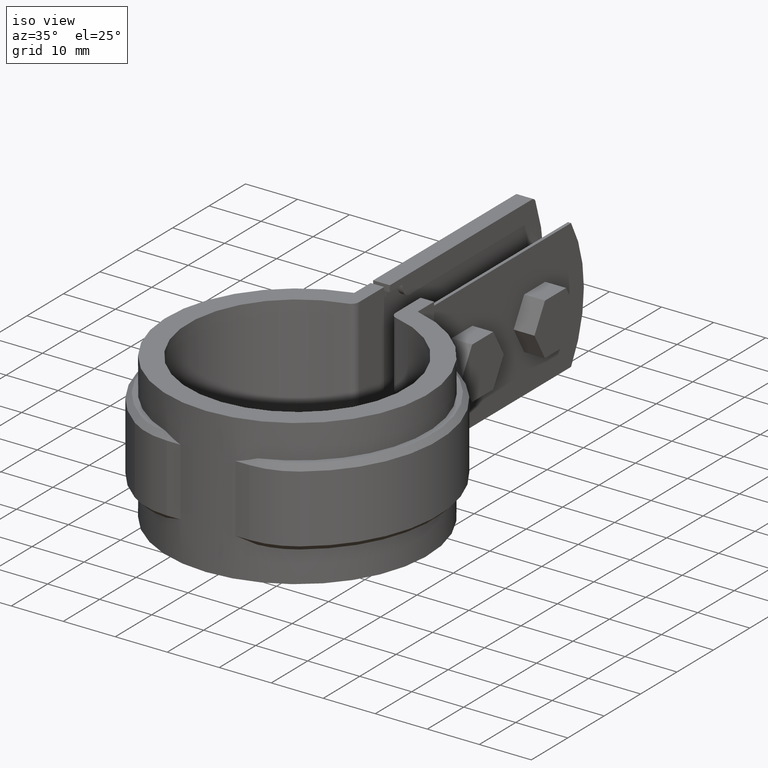
[diagram: clean part render]
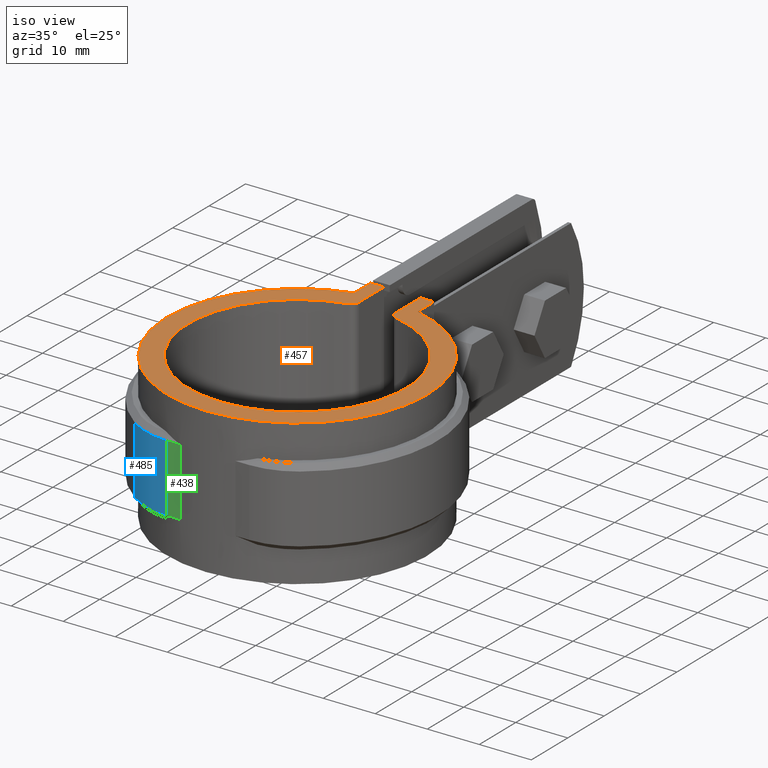
[diagram: same view with three faces highlighted in distinct colors, each labeled with its STEP entity id]
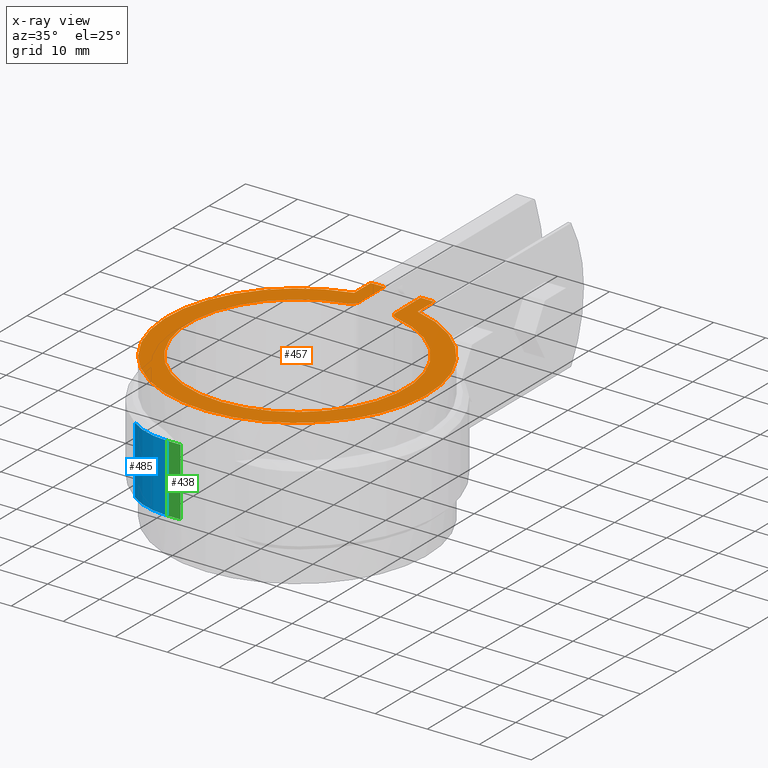
[diagram: x-ray of the same camera — body ghosted, the three highlighted faces saturated]
A machine part, iso view with three faces highlighted in distinct colors.
The next image is the same camera in x-ray (body ghosted, the three faces saturated) — at least one of them is partly hidden behind the body in this view.
Their STEP definitions:

[orange] entity #457 — the highlighted planar face has unit normal (0, 0, -1).
#457 = ADVANCED_FACE( '', ( #910 ), #911, .F. );
#910 = FACE_OUTER_BOUND( '', #2034, .T. );
#911 = PLANE( '', #2035 );
#2034 = EDGE_LOOP( '', ( #4236, #4237, #4238, #4239, #4240, #4241, #4242, #4243, #4244, #4245 ) );
#2035 = AXIS2_PLACEMENT_3D( '', #4246, #4247, #4248 );
#4236 = ORIENTED_EDGE( '', *, *, #6677, .T. );
#4237 = ORIENTED_EDGE( '', *, *, #6503, .T. );
#4238 = ORIENTED_EDGE( '', *, *, #6629, .T. );
#4239 = ORIENTED_EDGE( '', *, *, #6625, .T. );
#4240 = ORIENTED_EDGE( '', *, *, #6637, .T. );
#4241 = ORIENTED_EDGE( '', *, *, #6668, .T. );
#4242 = ORIENTED_EDGE( '', *, *, #6678, .T. );
#4243 = ORIENTED_EDGE( '', *, *, #6679, .T. );
#4244 = ORIENTED_EDGE( '', *, *, #6680, .F. );
#4245 = ORIENTED_EDGE( '', *, *, #6681, .T. );
#4246 = CARTESIAN_POINT( '', ( -6.50000000000000, 23.6220236220354, 1.50000000000000 ) );
#4247 = DIRECTION( '', ( 0.000000000000000, 0.000000000000000, -1.00000000000000 ) );
#4248 = DIRECTION( '', ( 1.00000000000000, -5.87893251310092E-017, 0.000000000000000 ) );
#6503 = EDGE_CURVE( '', #7537, #7538, #7539, .T. );
#6625 = EDGE_CURVE( '', #7754, #7752, #7755, .T. );
#6629 = EDGE_CURVE( '', #7538, #7754, #7760, .T. );
#6637 = EDGE_CURVE( '', #7752, #7772, #7774, .T. );
#6668 = EDGE_CURVE( '', #7772, #7819, #7820, .T. );
#6677 = EDGE_CURVE( '', #7833, #7537, #7834, .T. );
#6678 = EDGE_CURVE( '', #7819, #7835, #7836, .T. );
#6679 = EDGE_CURVE( '', #7835, #7837, #7838, .F. );
#6680 = EDGE_CURVE( '', #7839, #7837, #7840, .F. );
#6681 = EDGE_CURVE( '', #7839, #7833, #7841, .F. );
#7537 = VERTEX_POINT( '', #9944 );
#7538 = VERTEX_POINT( '', #9945 );
#7539 = LINE( '', #9946, #9947 );
#7752 = VERTEX_POINT( '', #11003 );
#7754 = VERTEX_POINT( '', #11006 );
#7755 = CIRCLE( '', #11007, 25.0950000000000 );
#7760 = LINE( '', #11015, #11016 );
#7772 = VERTEX_POINT( '', #11038 );
#7774 = LINE( '', #11041, #11042 );
#7819 = VERTEX_POINT( '', #11108 );
#7820 = LINE( '', #11109, #11110 );
#7833 = VERTEX_POINT( '', #11131 );
#7834 = LINE( '', #11132, #11133 );
#7835 = VERTEX_POINT( '', #11134 );
#7836 = LINE( '', #11135, #11136 );
#7837 = VERTEX_POINT( '', #11137 );
#7838 = CIRCLE( '', #11138, 1.50000000000000 );
#7839 = VERTEX_POINT( '', #11139 );
#7840 = CIRCLE( '', #11140, 21.0000000000000 );
#7841 = CIRCLE( '', #11141, 1.50000000000000 );
#9944 = CARTESIAN_POINT( '', ( -3.49999999999999, 28.8400000000000, 1.50000000000000 ) );
#9945 = CARTESIAN_POINT( '', ( -6.10000000000002, 28.8400000000000, 1.50000000000000 ) );
#9946 = CARTESIAN_POINT( '', ( -3.50000000000000, 28.8400000000000, 1.50000000000000 ) );
#9947 = VECTOR( '', #12859, 1000.00000000000 );
#11003 = CARTESIAN_POINT( '', ( 6.09999999999999, 24.3423299008127, 1.50000000000000 ) );
#11006 = CARTESIAN_POINT( '', ( -6.10000000000002, 24.3423299008127, 1.50000000000000 ) );
#11007 = AXIS2_PLACEMENT_3D( '', #12980, #12981, #12982 );
#11015 = CARTESIAN_POINT( '', ( -6.10000000000002, 28.8400000000000, 1.50000000000000 ) );
#11016 = VECTOR( '', #12986, 1000.00000000000 );
#11038 = CARTESIAN_POINT( '', ( 6.09999999999998, 28.8400000000000, 1.50000000000000 ) );
#11041 = CARTESIAN_POINT( '', ( 6.09999999999998, 24.3423299008127, 1.50000000000000 ) );
#11042 = VECTOR( '', #12992, 1000.00000000000 );
#11108 = CARTESIAN_POINT( '', ( 3.50000000000002, 28.8400000000000, 1.50000000000000 ) );
#11109 = CARTESIAN_POINT( '', ( 4.50000000000001, 28.8400000000000, 1.50000000000000 ) );
#11110 = VECTOR( '', #13047, 1000.00000000000 );
#11131 = CARTESIAN_POINT( '', ( -3.49999999999999, 21.9374109684803, 1.50000000000000 ) );
#11132 = CARTESIAN_POINT( '', ( -3.49999999999999, 20.7012082980680, 1.50000000000000 ) );
#11133 = VECTOR( '', #13056, 1000.00000000000 );
#11134 = CARTESIAN_POINT( '', ( 3.50000000000000, 21.9374109684803, 1.50000000000000 ) );
#11135 = CARTESIAN_POINT( '', ( 3.50000000000000, 28.8400000000000, 1.50000000000000 ) );
#11136 = VECTOR( '', #13057, 1000.00000000000 );
#11137 = CARTESIAN_POINT( '', ( 4.66666666666667, 20.4749169039149, 1.50000000000000 ) );
#11138 = AXIS2_PLACEMENT_3D( '', #13058, #13059, #13060 );
#11139 = CARTESIAN_POINT( '', ( -4.66666666666666, 20.4749169039149, 1.50000000000000 ) );
#11140 = AXIS2_PLACEMENT_3D( '', #13061, #13062, #13063 );
#11141 = AXIS2_PLACEMENT_3D( '', #13064, #13065, #13066 );
#12859 = DIRECTION( '', ( -1.00000000000000, 0.000000000000000, 0.000000000000000 ) );
#12980 = CARTESIAN_POINT( '', ( 0.000000000000000, 0.000000000000000, 1.50000000000000 ) );
#12981 = DIRECTION( '', ( 0.000000000000000, 0.000000000000000, 1.00000000000000 ) );
#12982 = DIRECTION( '', ( 1.00000000000000, -6.07153216591882E-017, 0.000000000000000 ) );
#12986 = DIRECTION( '', ( -6.07153216591882E-017, -1.00000000000000, 0.000000000000000 ) );
#12992 = DIRECTION( '', ( 6.07153216591882E-017, 1.00000000000000, 0.000000000000000 ) );
#13047 = DIRECTION( '', ( -1.00000000000000, 0.000000000000000, 0.000000000000000 ) );
#13056 = DIRECTION( '', ( 6.28837260041593E-017, 1.00000000000000, 0.000000000000000 ) );
#13057 = DIRECTION( '', ( -6.28837260041593E-017, -1.00000000000000, 0.000000000000000 ) );
#13058 = CARTESIAN_POINT( '', ( 5.00000000000000, 21.9374109684803, 1.50000000000000 ) );
#13059 = DIRECTION( '', ( 0.000000000000000, 0.000000000000000, -1.00000000000000 ) );
#13060 = DIRECTION( '', ( -1.00000000000000, 0.000000000000000, 0.000000000000000 ) );
#13061 = CARTESIAN_POINT( '', ( 0.000000000000000, 0.000000000000000, 1.50000000000000 ) );
#13062 = DIRECTION( '', ( 0.000000000000000, 0.000000000000000, -1.00000000000000 ) );
#13063 = DIRECTION( '', ( -1.00000000000000, 0.000000000000000, 0.000000000000000 ) );
#13064 = CARTESIAN_POINT( '', ( -4.99999999999999, 21.9374109684803, 1.50000000000000 ) );
#13065 = DIRECTION( '', ( 0.000000000000000, 0.000000000000000, -1.00000000000000 ) );
#13066 = DIRECTION( '', ( -1.00000000000000, 0.000000000000000, 0.000000000000000 ) );

[blue] entity #485 — the highlighted cylindrical surface (partial cylindrical patch) has radius 13.6 mm, axis along (0, 0, -1).
#485 = ADVANCED_FACE( '', ( #966 ), #967, .T. );
#966 = FACE_OUTER_BOUND( '', #2090, .T. );
#967 = CYLINDRICAL_SURFACE( '', #2091, 13.6000000000000 );
#2090 = EDGE_LOOP( '', ( #4582, #4583, #4584, #4585 ) );
#2091 = AXIS2_PLACEMENT_3D( '', #4586, #4587, #4588 );
#4582 = ORIENTED_EDGE( '', *, *, #6707, .F. );
#4583 = ORIENTED_EDGE( '', *, *, #6645, .T. );
#4584 = ORIENTED_EDGE( '', *, *, #6627, .T. );
#4585 = ORIENTED_EDGE( '', *, *, #6693, .T. );
#4586 = CARTESIAN_POINT( '', ( -7.90550795331962, -10.9370000000000, -20.0000000000000 ) );
#4587 = DIRECTION( '', ( 0.000000000000000, 0.000000000000000, -1.00000000000000 ) );
#4588 = DIRECTION( '', ( 0.209705966713379, 0.977764494919307, 0.000000000000000 ) );
#6627 = EDGE_CURVE( '', #7757, #7704, #7758, .T. );
#6645 = EDGE_CURVE( '', #7786, #7757, #7787, .F. );
#6693 = EDGE_CURVE( '', #7704, #7855, #7857, .T. );
#6707 = EDGE_CURVE( '', #7786, #7855, #7871, .T. );
#7704 = VERTEX_POINT( '', #10931 );
#7757 = VERTEX_POINT( '', #11010 );
#7758 = LINE( '', #11011, #11012 );
#7786 = VERTEX_POINT( '', #11065 );
#7787 = CIRCLE( '', #11066, 13.6000000000000 );
#7855 = VERTEX_POINT( '', #11161 );
#7857 = CIRCLE( '', #11164, 13.6000000000000 );
#7871 = LINE( '', #11208, #11209 );
#10931 = CARTESIAN_POINT( '', ( -7.90550795331962, -24.5370000000000, -6.00000000000000 ) );
#11010 = CARTESIAN_POINT( '', ( -7.90550795331962, -24.5370000000000, -19.0000000000000 ) );
#11011 = CARTESIAN_POINT( '', ( -7.90550795331962, -24.5370000000000, -20.0000000000000 ) );
#11012 = VECTOR( '', #12984, 1000.00000000000 );
#11065 = CARTESIAN_POINT( '', ( -15.8725259722264, -21.9590970729900, -19.0000000000000 ) );
#11066 = AXIS2_PLACEMENT_3D( '', #12998, #12999, #13000 );
#11161 = CARTESIAN_POINT( '', ( -15.8725259722264, -21.9590970729900, -6.00000000000000 ) );
#11164 = AXIS2_PLACEMENT_3D( '', #13086, #13087, #13088 );
#11208 = CARTESIAN_POINT( '', ( -15.8725259722264, -21.9590970729900, -20.0000000000000 ) );
#11209 = VECTOR( '', #13107, 1000.00000000000 );
#12984 = DIRECTION( '', ( 0.000000000000000, 0.000000000000000, 1.00000000000000 ) );
#12998 = CARTESIAN_POINT( '', ( -7.90550795331962, -10.9370000000000, -19.0000000000000 ) );
#12999 = DIRECTION( '', ( 0.000000000000000, 0.000000000000000, -1.00000000000000 ) );
#13000 = DIRECTION( '', ( -1.00000000000000, 0.000000000000000, 0.000000000000000 ) );
#13086 = CARTESIAN_POINT( '', ( -7.90550795331962, -10.9370000000000, -6.00000000000000 ) );
#13087 = DIRECTION( '', ( 0.000000000000000, 0.000000000000000, -1.00000000000000 ) );
#13088 = DIRECTION( '', ( -1.00000000000000, 0.000000000000000, 0.000000000000000 ) );
#13107 = DIRECTION( '', ( 0.000000000000000, 0.000000000000000, 1.00000000000000 ) );

[green] entity #438 — the highlighted planar face has unit normal (-0, -1, 0).
#438 = ADVANCED_FACE( '', ( #871 ), #872, .T. );
#871 = FACE_OUTER_BOUND( '', #1995, .T. );
#872 = PLANE( '', #1996 );
#1995 = EDGE_LOOP( '', ( #4078, #4079, #4080, #4081 ) );
#1996 = AXIS2_PLACEMENT_3D( '', #4082, #4083, #4084 );
#4078 = ORIENTED_EDGE( '', *, *, #6627, .F. );
#4079 = ORIENTED_EDGE( '', *, *, #6628, .T. );
#4080 = ORIENTED_EDGE( '', *, *, #6611, .T. );
#4081 = ORIENTED_EDGE( '', *, *, #6598, .T. );
#4082 = CARTESIAN_POINT( '', ( -7.90550795331962, -24.5370000000000, -20.0000000000000 ) );
#4083 = DIRECTION( '', ( -2.77555756156289E-017, -1.00000000000000, 0.000000000000000 ) );
#4084 = DIRECTION( '', ( -1.00000000000000, 2.77555756156289E-017, 0.000000000000000 ) );
#6598 = EDGE_CURVE( '', #7706, #7704, #7707, .T. );
#6611 = EDGE_CURVE( '', #7727, #7706, #7728, .T. );
#6627 = EDGE_CURVE( '', #7757, #7704, #7758, .T. );
#6628 = EDGE_CURVE( '', #7757, #7727, #7759, .T. );
#7704 = VERTEX_POINT( '', #10931 );
#7706 = VERTEX_POINT( '', #10934 );
#7707 = LINE( '', #10935, #10936 );
#7727 = VERTEX_POINT( '', #10968 );
#7728 = LINE( '', #10969, #10970 );
#7757 = VERTEX_POINT( '', #11010 );
#7758 = LINE( '', #11011, #11012 );
#7759 = LINE( '', #11013, #11014 );
#10931 = CARTESIAN_POINT( '', ( -7.90550795331962, -24.5370000000000, -6.00000000000000 ) );
#10934 = CARTESIAN_POINT( '', ( -5.26257123467226, -24.5370000000000, -6.00000000000000 ) );
#10935 = CARTESIAN_POINT( '', ( -7.90550795331962, -24.5370000000000, -6.00000000000000 ) );
#10936 = VECTOR( '', #12935, 1000.00000000000 );
#10968 = CARTESIAN_POINT( '', ( -5.26257123467226, -24.5370000000000, -19.0000000000000 ) );
#10969 = CARTESIAN_POINT( '', ( -5.26257123467226, -24.5370000000000, -20.0000000000000 ) );
#10970 = VECTOR( '', #12954, 1000.00000000000 );
#11010 = CARTESIAN_POINT( '', ( -7.90550795331962, -24.5370000000000, -19.0000000000000 ) );
#11011 = CARTESIAN_POINT( '', ( -7.90550795331962, -24.5370000000000, -20.0000000000000 ) );
#11012 = VECTOR( '', #12984, 1000.00000000000 );
#11013 = CARTESIAN_POINT( '', ( -7.90550795331962, -24.5370000000000, -19.0000000000000 ) );
#11014 = VECTOR( '', #12985, 1000.00000000000 );
#12935 = DIRECTION( '', ( -1.00000000000000, 2.77555756156289E-017, 0.000000000000000 ) );
#12954 = DIRECTION( '', ( 0.000000000000000, 0.000000000000000, 1.00000000000000 ) );
#12984 = DIRECTION( '', ( 0.000000000000000, 0.000000000000000, 1.00000000000000 ) );
#12985 = DIRECTION( '', ( 1.00000000000000, -2.77555756156289E-017, 0.000000000000000 ) );